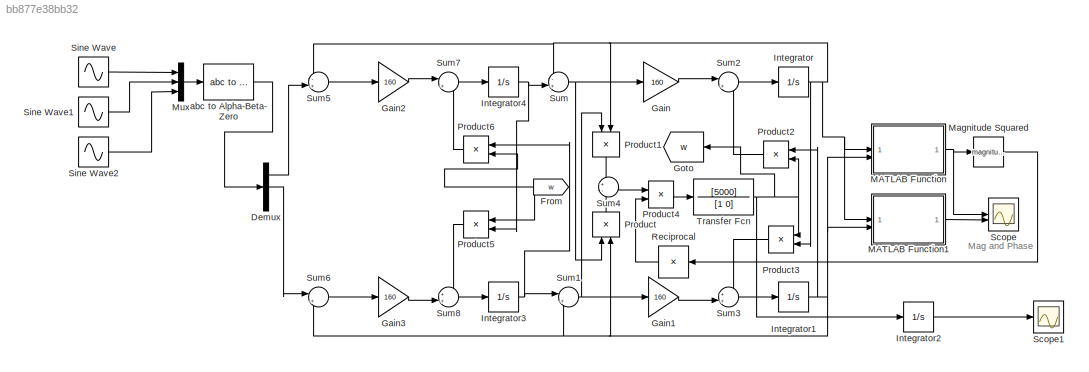
MODEL slx_bb877e38bb32
KIND model
CONFIG AbsTol = auto
CONFIG EnableMultiTasking = off
CONFIG FixedStep = auto
CONFIG MaxStep = auto
CONFIG MinStep = auto
CONFIG RelTol = 1e-3
CONFIG SampleTimeConstraint = Unconstrained
CONFIG SolverName = VariableStepAuto
CONFIG StartTime = 0.0
CONFIG StopTime = 1
BLOCK [Demux] Demux
  Outputs = 3
BLOCK [From] From
  GotoTag = w
BLOCK [Gain] Gain
  Gain = 160
BLOCK [Gain] Gain1
  Gain = 160
BLOCK [Gain] Gain2
  Gain = 160
BLOCK [Gain] Gain3
  Gain = 160
BLOCK [Goto] Goto
  GotoTag = w
  NameLocation = top
BLOCK [Integrator] Integrator
  InitialCondition = 1
BLOCK [Integrator] Integrator1
  InitialCondition = 1
BLOCK [Integrator] Integrator2
  InitialCondition = 1
BLOCK [Integrator] Integrator3
  InitialCondition = 1
BLOCK [Integrator] Integrator4
  InitialCondition = 1
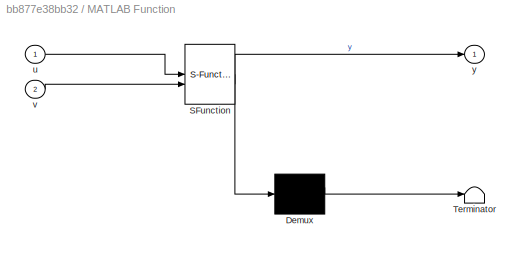
BLOCK [SubSystem] MATLAB Function
  ErrorFcn = Stateflow.Translate.translate
  LibrarySourceBlock = simulink/User-Defined\nFunctions/MATLAB Function
  PermitHierarchicalResolution = ExplicitOnly
  SFBlockType = MATLAB Function
  TreatAsAtomicUnit = on
BLOCK [Demux] MATLAB Function/ Demux 
  Outputs = 1
BLOCK [S-Function] MATLAB Function/ SFunction 
  EnableBusSupport = on
  FunctionName = sf_sfun
  PortCounts = [2 2]
  SFcnIsStateOwnerBlock = off
  SFunctionDeploymentMode = off
  Tag = Stateflow S-Function 2
BLOCK [Terminator] MATLAB Function/ Terminator 
BLOCK [Inport] MATLAB Function/u
BLOCK [Inport] MATLAB Function/v
  Port = 2
BLOCK [Outport] MATLAB Function/y
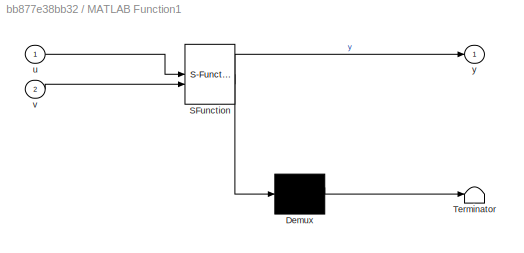
BLOCK [SubSystem] MATLAB Function1
  ErrorFcn = Stateflow.Translate.translate
  LibrarySourceBlock = simulink/User-Defined\nFunctions/MATLAB Function
  PermitHierarchicalResolution = ExplicitOnly
  SFBlockType = MATLAB Function
  TreatAsAtomicUnit = on
BLOCK [Demux] MATLAB Function1/ Demux 
  Outputs = 1
BLOCK [S-Function] MATLAB Function1/ SFunction 
  EnableBusSupport = on
  FunctionName = sf_sfun
  PortCounts = [2 2]
  SFcnIsStateOwnerBlock = off
  SFunctionDeploymentMode = off
  Tag = Stateflow S-Function 1
BLOCK [Terminator] MATLAB Function1/ Terminator 
BLOCK [Inport] MATLAB Function1/u
BLOCK [Inport] MATLAB Function1/v
  Port = 2
BLOCK [Outport] MATLAB Function1/y
BLOCK [Math] Magnitude Squared
  Operator = magnitude^2
BLOCK [Mux] Mux
  DisplayOption = bar
  Inputs = 3
BLOCK [Product] Product
  NameLocation = right
BLOCK [Product] Product1
  NameLocation = left
BLOCK [Product] Product2
  NameLocation = top
BLOCK [Product] Product3
  NameLocation = top
BLOCK [Product] Product4
BLOCK [Product] Product5
  NameLocation = top
BLOCK [Product] Product6
  NameLocation = top
BLOCK [Product] Reciprocal
  Inputs = /
  NameLocation = top
  RndMeth = Zero
  SaturateOnIntegerOverflow = on
BLOCK [Scope] Scope
  Floating = off
  NumInputPorts = 2
  ScopeSpecificationString = Simulink.scopes.TimeScopeBlockCfg('CurrentConfiguration', extmgr.ConfigurationSet(extmgr.Configuration('Core','General UI',true),extmgr.Configuration('Core','Source UI',true),extmgr.Configuration('Sources','WiredSimulink',true),extmgr.Configuration('Visuals','Time Domain',true,'SerializedDisplays',{struct('MinYLimReal','-45.63128','MaxYLimReal','424.82364','YLabelReal','','MinYLimMag','0.00000','M...<+2211ch>
BLOCK [Scope] Scope1
  Floating = off
  NumInputPorts = 1
  ScopeSpecificationString = Simulink.scopes.TimeScopeBlockCfg('CurrentConfiguration', extmgr.ConfigurationSet(extmgr.Configuration('Core','General UI',true),extmgr.Configuration('Core','Source UI',true),extmgr.Configuration('Sources','WiredSimulink',true,'DataLoggingVariableName','ScopeData1'),extmgr.Configuration('Visuals','Time Domain',true,'SerializedDisplays',{struct('MinYLimReal','-340.22657','MaxYLimReal','38.98854','Y...<+1471ch>
BLOCK [Sin] Sine Wave
  Amplitude = 311
  Frequency = 2*pi*50
  SampleTime = 1/10000
BLOCK [Sin] Sine Wave1
  Amplitude = 311
  Frequency = 2*pi*50
  Phase = 2*pi/3
  SampleTime = 1/10000
BLOCK [Sin] Sine Wave2
  Amplitude = 311
  Frequency = 2*pi*50
  Phase = 4*pi/3
  SampleTime = 1/10000
BLOCK [Sum] Sum
  Inputs = -+|
BLOCK [Sum] Sum1
  Inputs = |+-
BLOCK [Sum] Sum2
  Inputs = |+-
BLOCK [Sum] Sum3
  Inputs = ++|
BLOCK [Sum] Sum4
  Inputs = +-
BLOCK [Sum] Sum5
  Inputs = -+|
BLOCK [Sum] Sum6
  Inputs = |+-
BLOCK [Sum] Sum7
  Inputs = |+-
BLOCK [Sum] Sum8
  Inputs = ++|
BLOCK [TransferFcn] Transfer Fcn
  Denominator = [1 0]
  Numerator = [5000]
BLOCK [Reference] abc to Alpha-Beta-Zero  REF=spsabctoAlphaBetaZeroLib/abc to
Alpha-Beta-Zero
  LibrarySourceBlock = sps_lib/Control/abc to\nAlpha-Beta-Zero
  SourceBlock = spsabctoAlphaBetaZeroLib/abc to\nAlpha-Beta-Zero
  SourceType = abc to Alpha-Beta-Zero Transformation
ANNOTATION (root): Mag and Phase
LINE Demux:1 -> Sum5:2
LINE Demux:2 -> Sum6:1
NET From:1 -> Product5:1, Product6:2
LINE Gain1:1 -> Sum3:2
LINE Gain2:1 -> Sum7:1
LINE Gain3:1 -> Sum8:2
LINE Gain:1 -> Sum2:1
NET Integrator1:1 -> MATLAB Function1:2, MATLAB Function:2, Product2:1, Product:2, Sum1:2, Sum6:2
LINE Integrator2:1 -> Scope1:1
NET Integrator3:1 -> Product6:1, Sum1:1
NET Integrator4:1 -> Product5:2, Sum:2
NET Integrator:1 -> MATLAB Function1:1, MATLAB Function:1, Product1:2, Product3:2, Sum5:1, Sum:1
LINE MATLAB Function1:1 -> Scope:2
NET MATLAB Function:1 -> Magnitude Squared:1, Scope:1
LINE Magnitude Squared:1 -> Reciprocal:1
LINE Mux:1 -> abc to Alpha-Beta-Zero:1
LINE Product1:1 -> Sum4:1
LINE Product2:1 -> Sum2:2
LINE Product3:1 -> Sum3:1
LINE Product4:1 -> Transfer Fcn:1
LINE Product5:1 -> Sum8:1
LINE Product6:1 -> Sum7:2
LINE Product:1 -> Sum4:2
LINE Reciprocal:1 -> Product4:2
LINE Sine Wave1:1 -> Mux:2
LINE Sine Wave2:1 -> Mux:3
LINE Sine Wave:1 -> Mux:1
NET Sum1:1 -> Gain1:1, Product1:1
LINE Sum2:1 -> Integrator:1
LINE Sum3:1 -> Integrator1:1
LINE Sum4:1 -> Product4:1
LINE Sum5:1 -> Gain2:1
LINE Sum6:1 -> Gain3:1
LINE Sum7:1 -> Integrator4:1
LINE Sum8:1 -> Integrator3:1
NET Sum:1 -> Gain:1, Product:1
NET Transfer Fcn:1 -> Goto:1, Integrator2:1, Product2:2, Product3:1
LINE abc to Alpha-Beta-Zero:1 -> Demux:1
note: NET lines group one-source signal fan-out (src -> all destinations, sorted); 1:1 wires keep LINE
CHART MATLAB Function states=1 transitions=1
  STATE_LABEL 'eML_blk_kernel()'
  STATE_LABEL 'SCRIPT:\nfunction y = fcn(u,v)\n\ny = sqrt((u^2)+(v^2));\n'
CHART MATLAB Function1 states=1 transitions=1
  STATE_LABEL 'eML_blk_kernel()'
  STATE_LABEL 'SCRIPT:\nfunction y = fcn(u,v)\n\ny = atan(v/u);\n'
CHART  states=0 transitions=0
CHART  states=0 transitions=0
